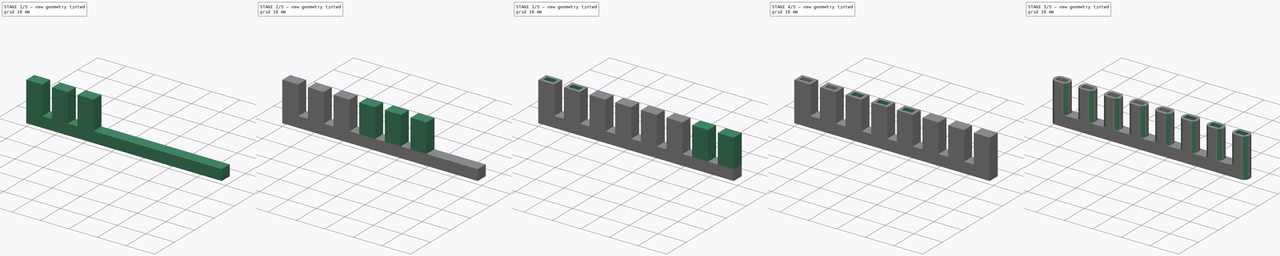
[diagram: build sequence overview — one tinted view per stage of 5, left to right]
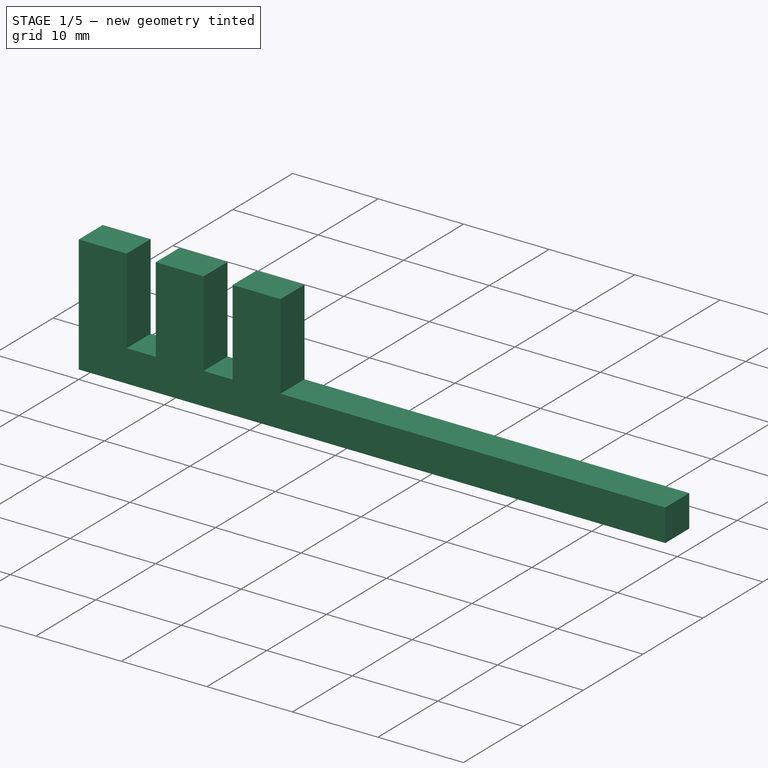
[diagram: stage 1 of 5 — iso view after this stage's code; geometry added in this stage tinted green]
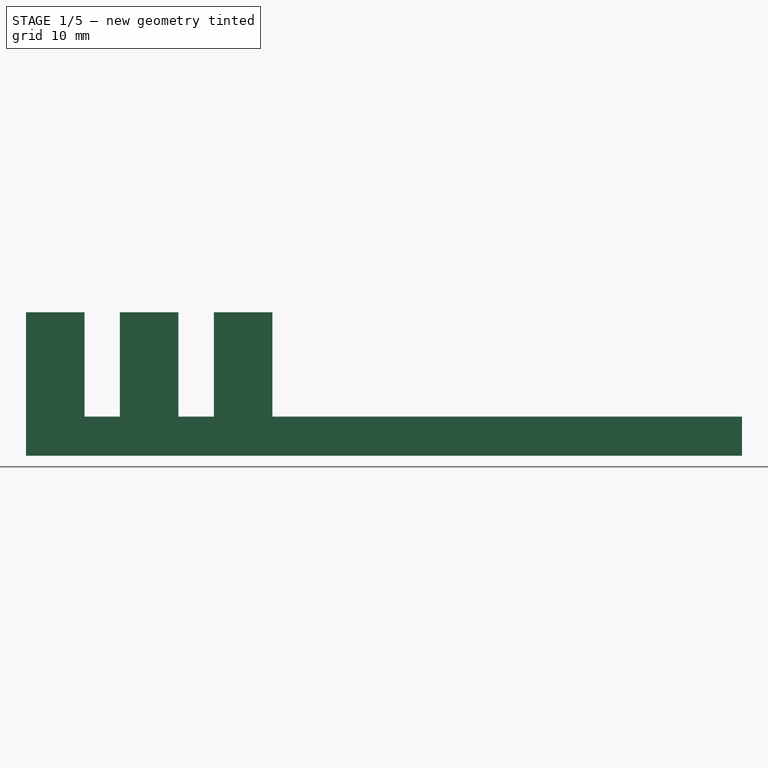
[diagram: stage 1 of 5 — front view after this stage's code; geometry added in this stage tinted green]
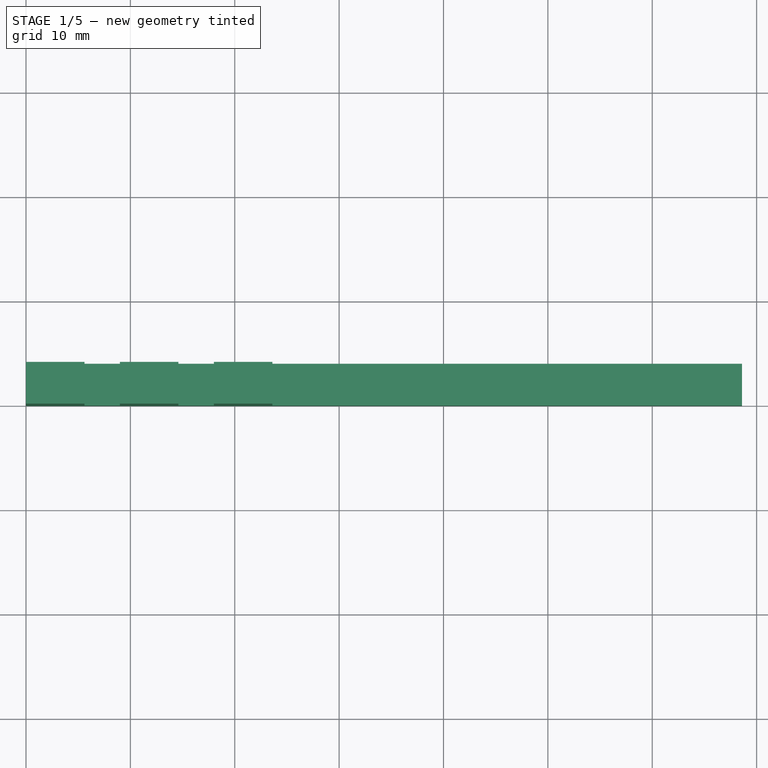
[diagram: stage 1 of 5 — top view after this stage's code; geometry added in this stage tinted green]
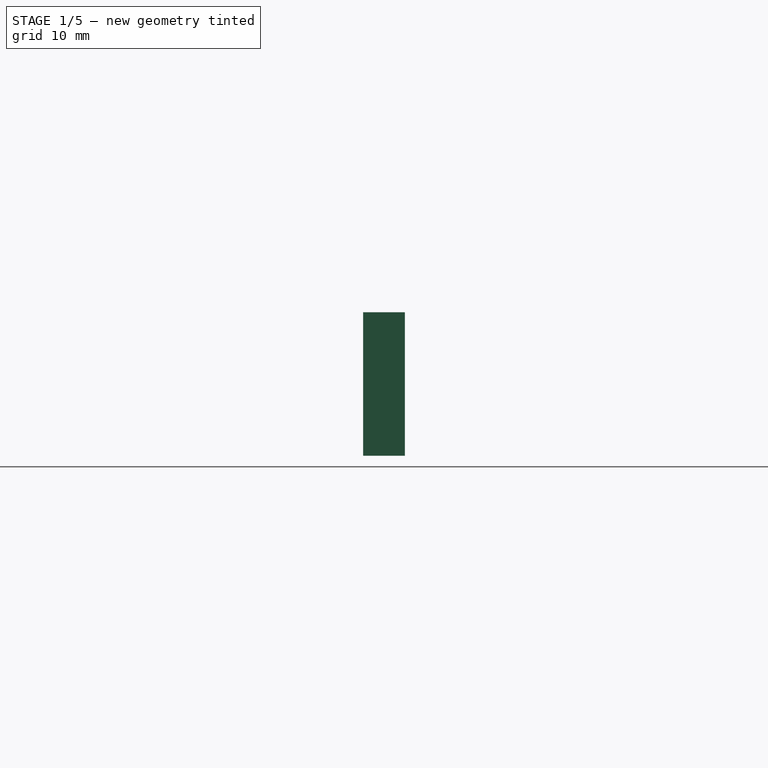
[diagram: stage 1 of 5 — right view after this stage's code; geometry added in this stage tinted green]
FCSTD DOCUMENT  (FreeCAD 0.19R14555 (Git shallow))
Label: ops.dicer_rect.lg_pocket_fillet
License: All rights reserved
LicenseURL: http://en.wikipedia.org/wiki/All_rights_reserved
objects: Sketcher::SketchObject×17, PartDesign::Pad×9, PartDesign::Pocket×8, PartDesign::Fillet×1, PartDesign::Body×1
note: 54 computed .brp shape members not serialized (recipe doc carries the construction recipe); baked Part::Feature solids carry a one-line shape summary decoded from their .brp

FEATURE [Sketcher::SketchObject] Sketch
  FullyConstrained = true
  MapMode = 5
  Support = -> [XY_Plane]
  sketch-geometry (4):
    g0: LineSegment StartX=0 StartY=0 StartZ=0 EndX=5.6 EndY=0 EndZ=0
    g1: LineSegment StartX=5.6 StartY=0 StartZ=0 EndX=5.6 EndY=4 EndZ=0
    g2: LineSegment StartX=5.6 StartY=4 StartZ=0 EndX=0 EndY=4 EndZ=0
    g3: LineSegment StartX=0 StartY=4 StartZ=0 EndX=0 EndY=0 EndZ=0
  constraints (11):
    c: Coincident(g0,g1)
    c: Coincident(g1,g2)
    c: Coincident(g2,g3)
    c: Coincident(g3,g0)
    c: Horizontal(g0)
    c: Horizontal(g2)
    c: Vertical(g1)
    c: Vertical(g3)
    c: Coincident(g0,g-1)
    c: DistanceY(g0,g2) = 4
    c: DistanceX(g2,g1) = 5.6
FEATURE [Sketcher::SketchObject] Sketch001
  FullyConstrained = true
  MapMode = 5
  Support = -> [XY_Plane]
  sketch-geometry (4):
    g0: LineSegment StartX=9 StartY=0 StartZ=0 EndX=14.6 EndY=0 EndZ=0
    g1: LineSegment StartX=14.6 StartY=0 StartZ=0 EndX=14.6 EndY=4 EndZ=0
    g2: LineSegment StartX=14.6 StartY=4 StartZ=0 EndX=9 EndY=4 EndZ=0
    g3: LineSegment StartX=9 StartY=4 StartZ=0 EndX=9 EndY=0 EndZ=0
  constraints (12):
    c: Coincident(g0,g1)
    c: Coincident(g1,g2)
    c: Coincident(g2,g3)
    c: Coincident(g3,g0)
    c: Horizontal(g0)
    c: Horizontal(g2)
    c: Vertical(g1)
    c: Vertical(g3)
    c: PointOnObject(g0,g-1)
    c: DistanceX(g-1,g0) = 9
    c: DistanceX(g0,g0) = 5.6
    c: DistanceY(g0,g2) = 4
FEATURE [Sketcher::SketchObject] Sketch002
  FullyConstrained = true
  MapMode = 5
  Support = -> [XY_Plane]
  sketch-geometry (4):
    g0: LineSegment StartX=18 StartY=0 StartZ=0 EndX=23.6 EndY=0 EndZ=0
    g1: LineSegment StartX=23.6 StartY=0 StartZ=0 EndX=23.6 EndY=4 EndZ=0
    g2: LineSegment StartX=23.6 StartY=4 StartZ=0 EndX=18 EndY=4 EndZ=0
    g3: LineSegment StartX=18 StartY=4 StartZ=0 EndX=18 EndY=0 EndZ=0
  constraints (12):
    c: Coincident(g0,g1)
    c: Coincident(g1,g2)
    c: Coincident(g2,g3)
    c: Coincident(g3,g0)
    c: Horizontal(g0)
    c: Horizontal(g2)
    c: Vertical(g1)
    c: Vertical(g3)
    c: PointOnObject(g0,g-1)
    c: DistanceX(g-1,g0) = 18
    c: DistanceX(g0,g0) = 5.6
    c: DistanceY(g0,g2) = 4
FEATURE [Sketcher::SketchObject] Sketch003
  FullyConstrained = true
  MapMode = 5
  Support = -> [XY_Plane]
  sketch-geometry (4):
    g0: LineSegment StartX=27 StartY=0 StartZ=0 EndX=32.6 EndY=0 EndZ=0
    g1: LineSegment StartX=32.6 StartY=0 StartZ=0 EndX=32.6 EndY=4 EndZ=0
    g2: LineSegment StartX=32.6 StartY=4 StartZ=0 EndX=27 EndY=4 EndZ=0
    g3: LineSegment StartX=27 StartY=4 StartZ=0 EndX=27 EndY=0 EndZ=0
  constraints (12):
    c: Coincident(g0,g1)
    c: Coincident(g1,g2)
    c: Coincident(g2,g3)
    c: Coincident(g3,g0)
    c: Horizontal(g0)
    c: Horizontal(g2)
    c: Vertical(g1)
    c: Vertical(g3)
    c: PointOnObject(g0,g-1)
    c: DistanceX(g-1,g0) = 27
    c: DistanceX(g0,g0) = 5.6
    c: DistanceY(g0,g2) = 4
FEATURE [Sketcher::SketchObject] Sketch004
  FullyConstrained = true
  MapMode = 5
  Support = -> [XY_Plane]
  sketch-geometry (4):
    g0: LineSegment StartX=36 StartY=0 StartZ=0 EndX=41.6 EndY=0 EndZ=0
    g1: LineSegment StartX=41.6 StartY=0 StartZ=0 EndX=41.6 EndY=4 EndZ=0
    g2: LineSegment StartX=41.6 StartY=4 StartZ=0 EndX=36 EndY=4 EndZ=0
    g3: LineSegment StartX=36 StartY=4 StartZ=0 EndX=36 EndY=0 EndZ=0
  constraints (12):
    c: Coincident(g0,g1)
    c: Coincident(g1,g2)
    c: Coincident(g2,g3)
    c: Coincident(g3,g0)
    c: Horizontal(g0)
    c: Horizontal(g2)
    c: Vertical(g1)
    c: Vertical(g3)
    c: PointOnObject(g0,g-1)
    c: DistanceX(g-1,g0) = 36
    c: DistanceX(g0,g0) = 5.6
    c: DistanceY(g0,g1) = 4
FEATURE [Sketcher::SketchObject] Sketch005
  FullyConstrained = true
  MapMode = 5
  Support = -> [XY_Plane]
  sketch-geometry (4):
    g0: LineSegment StartX=45 StartY=0 StartZ=0 EndX=50.6 EndY=0 EndZ=0
    g1: LineSegment StartX=50.6 StartY=0 StartZ=0 EndX=50.6 EndY=4 EndZ=0
    g2: LineSegment StartX=50.6 StartY=4 StartZ=0 EndX=45 EndY=4 EndZ=0
    g3: LineSegment StartX=45 StartY=4 StartZ=0 EndX=45 EndY=0 EndZ=0
  constraints (12):
    c: Coincident(g0,g1)
    c: Coincident(g1,g2)
    c: Coincident(g2,g3)
    c: Coincident(g3,g0)
    c: Horizontal(g0)
    c: Horizontal(g2)
    c: Vertical(g1)
    c: Vertical(g3)
    c: PointOnObject(g0,g-1)
    c: DistanceX(g-1,g0) = 45
    c: DistanceX(g0,g0) = 5.6
    c: DistanceY(g0,g2) = 4
FEATURE [Sketcher::SketchObject] Sketch006
  FullyConstrained = true
  MapMode = 5
  Support = -> [XY_Plane]
  sketch-geometry (4):
    g0: LineSegment StartX=54 StartY=4 StartZ=0 EndX=59.6 EndY=4 EndZ=0
    g1: LineSegment StartX=59.6 StartY=4 StartZ=0 EndX=59.6 EndY=0 EndZ=0
    g2: LineSegment StartX=59.6 StartY=0 StartZ=0 EndX=54 EndY=0 EndZ=0
    g3: LineSegment StartX=54 StartY=0 StartZ=0 EndX=54 EndY=4 EndZ=0
  constraints (12):
    c: Coincident(g0,g1)
    c: Coincident(g1,g2)
    c: Coincident(g2,g3)
    c: Coincident(g3,g0)
    c: Horizontal(g0)
    c: Horizontal(g2)
    c: Vertical(g1)
    c: Vertical(g3)
    c: PointOnObject(g1,g-1)
    c: DistanceX(g-1,g2) = 54
    c: DistanceX(g2,g1) = 5.6
    c: DistanceY(g2,g0) = 4
FEATURE [Sketcher::SketchObject] Sketch007
  FullyConstrained = true
  MapMode = 5
  Support = -> [XY_Plane]
  sketch-geometry (4):
    g0: LineSegment StartX=63 StartY=0 StartZ=0 EndX=68.6 EndY=0 EndZ=0
    g1: LineSegment StartX=68.6 StartY=0 StartZ=0 EndX=68.6 EndY=4 EndZ=0
    g2: LineSegment StartX=68.6 StartY=4 StartZ=0 EndX=63 EndY=4 EndZ=0
    g3: LineSegment StartX=63 StartY=4 StartZ=0 EndX=63 EndY=0 EndZ=0
  constraints (12):
    c: Coincident(g0,g1)
    c: Coincident(g1,g2)
    c: Coincident(g2,g3)
    c: Coincident(g3,g0)
    c: Horizontal(g0)
    c: Horizontal(g2)
    c: Vertical(g1)
    c: Vertical(g3)
    c: PointOnObject(g0,g-1)
    c: DistanceX(g-1,g0) = 63
    c: DistanceY(g0,g2) = 4
    c: DistanceX(g0,g0) = 5.6
FEATURE [Sketcher::SketchObject] Sketch008
  FullyConstrained = true
  MapMode = 5
  Support = -> [XY_Plane]
  sketch-geometry (4):
    g0: LineSegment StartX=0 StartY=0 StartZ=0 EndX=68.6 EndY=0 EndZ=0
    g1: LineSegment StartX=68.6 StartY=0 StartZ=0 EndX=68.6 EndY=4 EndZ=0
    g2: LineSegment StartX=68.6 StartY=4 StartZ=0 EndX=0 EndY=4 EndZ=0
    g3: LineSegment StartX=0 StartY=4 StartZ=0 EndX=0 EndY=0 EndZ=0
  constraints (11):
    c: Coincident(g0,g1)
    c: Coincident(g1,g2)
    c: Coincident(g2,g3)
    c: Coincident(g3,g0)
    c: Horizontal(g0)
    c: Horizontal(g2)
    c: Vertical(g1)
    c: Vertical(g3)
    c: Coincident(g0,g-1)
    c: DistanceY(g0,g2) = 4
    c: DistanceX(g0,g0) = 68.6
FEATURE [PartDesign::Pad] Pad
  Direction = (1,1,1)
  Length = 3.75
  Length2 = 100
  Profile = -> Sketch008
  Reversed = true
  Type = 0
FEATURE [PartDesign::Pad] Pad001
  BaseFeature = -> Pad
  Direction = (1,1,1)
  Length = 10
  Length2 = 100
  Profile = -> Sketch
  Type = 0
FEATURE [PartDesign::Pad] Pad002
  BaseFeature = -> Pad001
  Direction = (1,1,1)
  Length = 10
  Length2 = 100
  Profile = -> Sketch001
  Type = 0
FEATURE [PartDesign::Pad] Pad003
  BaseFeature = -> Pad002
  Direction = (1,1,1)
  Length = 10
  Length2 = 100
  Profile = -> Sketch002
  Type = 0
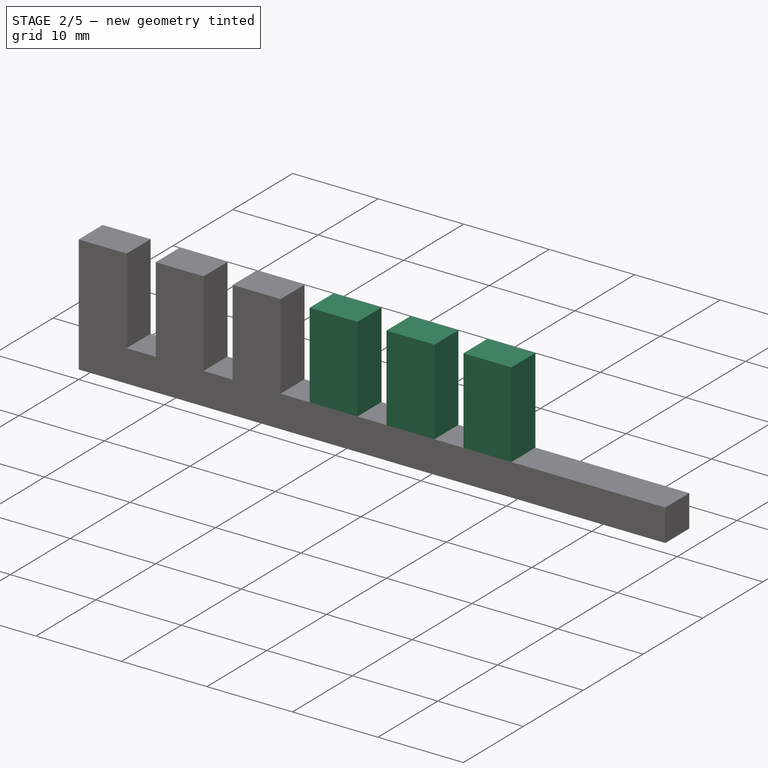
[diagram: stage 2 of 5 — iso view after this stage's code; geometry added in this stage tinted green]
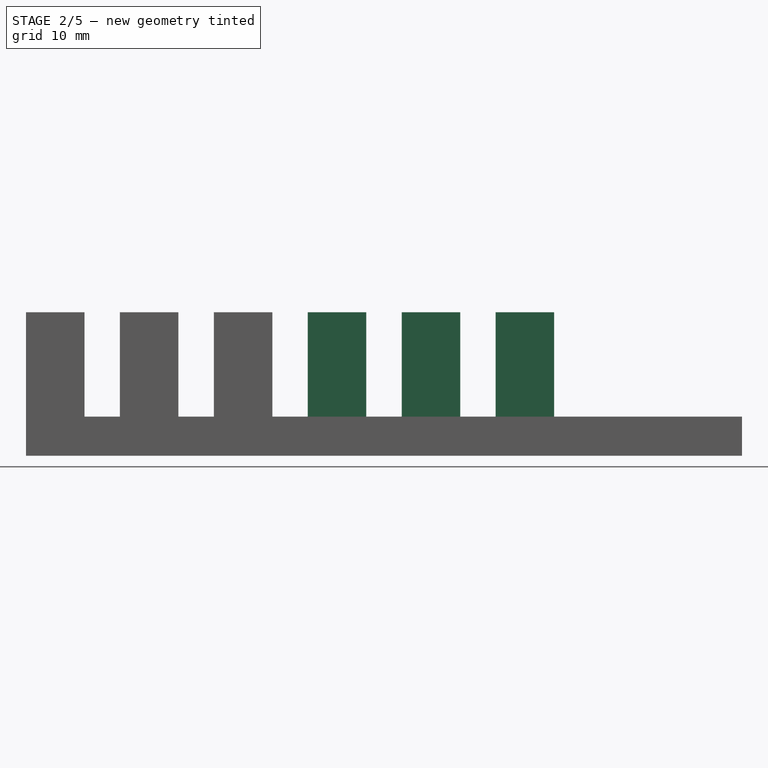
[diagram: stage 2 of 5 — front view after this stage's code; geometry added in this stage tinted green]
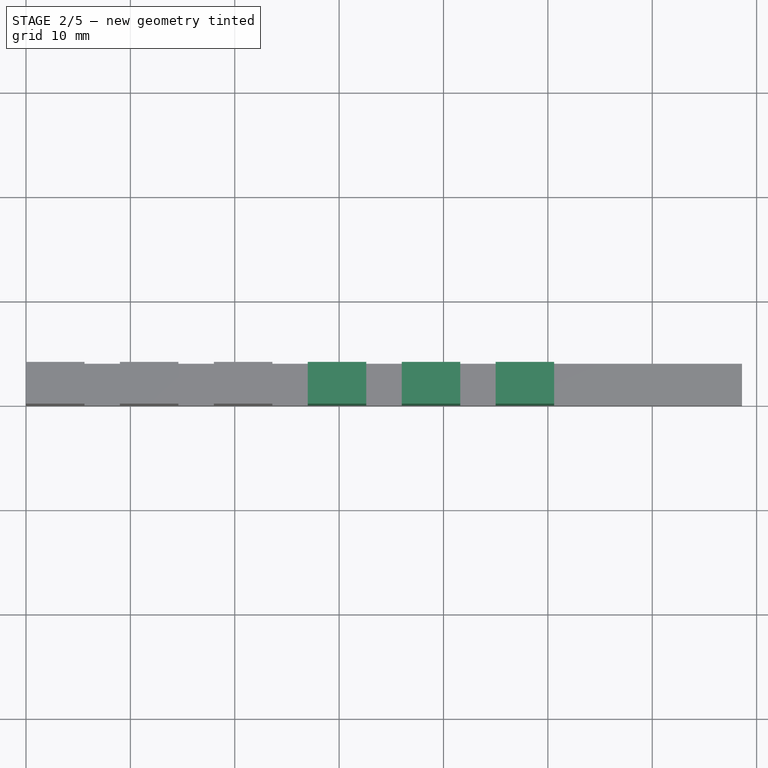
[diagram: stage 2 of 5 — top view after this stage's code; geometry added in this stage tinted green]
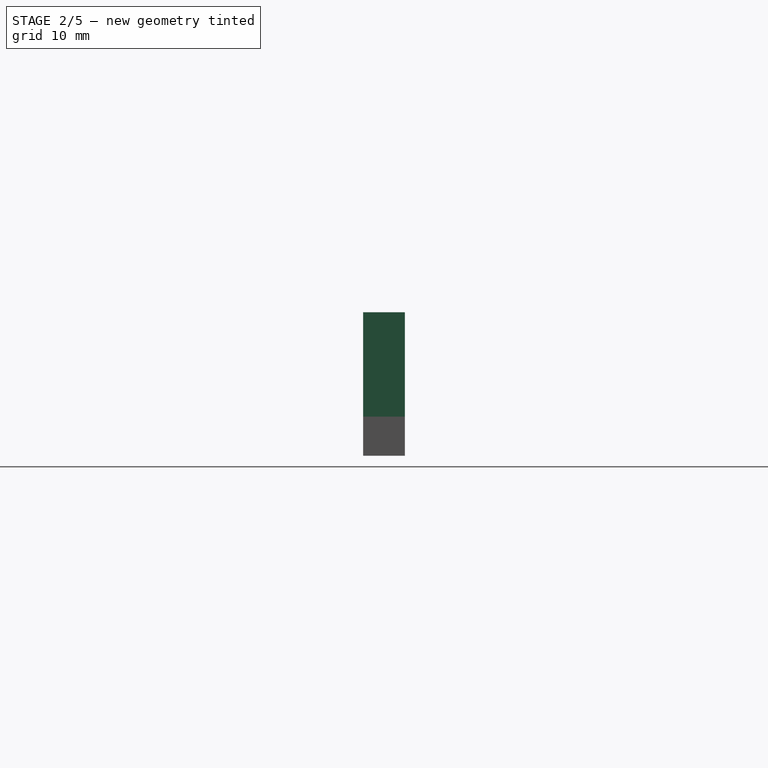
[diagram: stage 2 of 5 — right view after this stage's code; geometry added in this stage tinted green]
FEATURE [PartDesign::Pad] Pad004
  BaseFeature = -> Pad003
  Direction = (1,1,1)
  Length = 10
  Length2 = 100
  Profile = -> Sketch003
  Type = 0
FEATURE [PartDesign::Pad] Pad005
  BaseFeature = -> Pad004
  Direction = (1,1,1)
  Length = 10
  Length2 = 100
  Profile = -> Sketch004
  Type = 0
FEATURE [PartDesign::Pad] Pad006
  BaseFeature = -> Pad005
  Direction = (1,1,1)
  Length = 10
  Length2 = 100
  Profile = -> Sketch005
  Type = 0
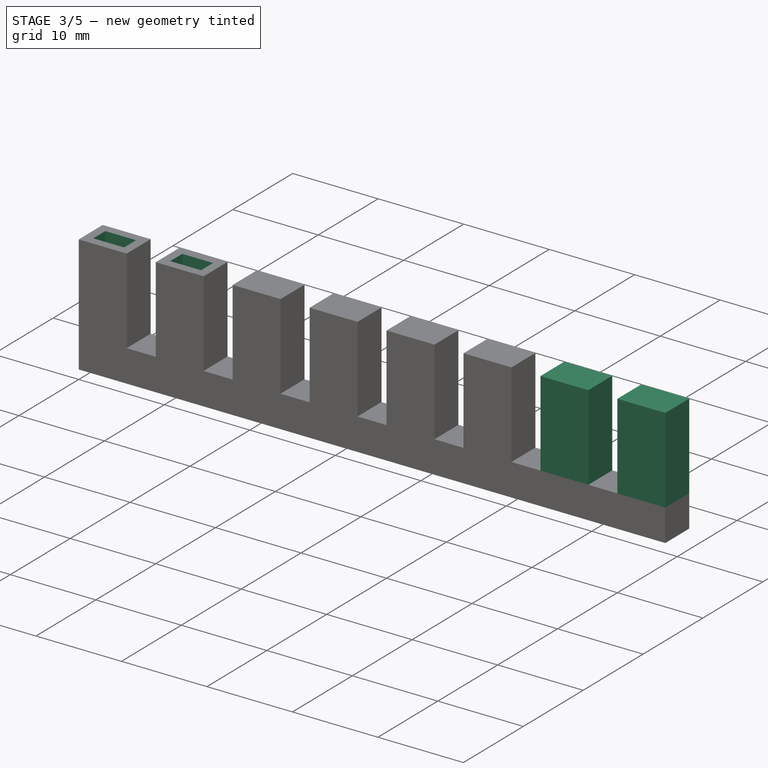
[diagram: stage 3 of 5 — iso view after this stage's code; geometry added in this stage tinted green]
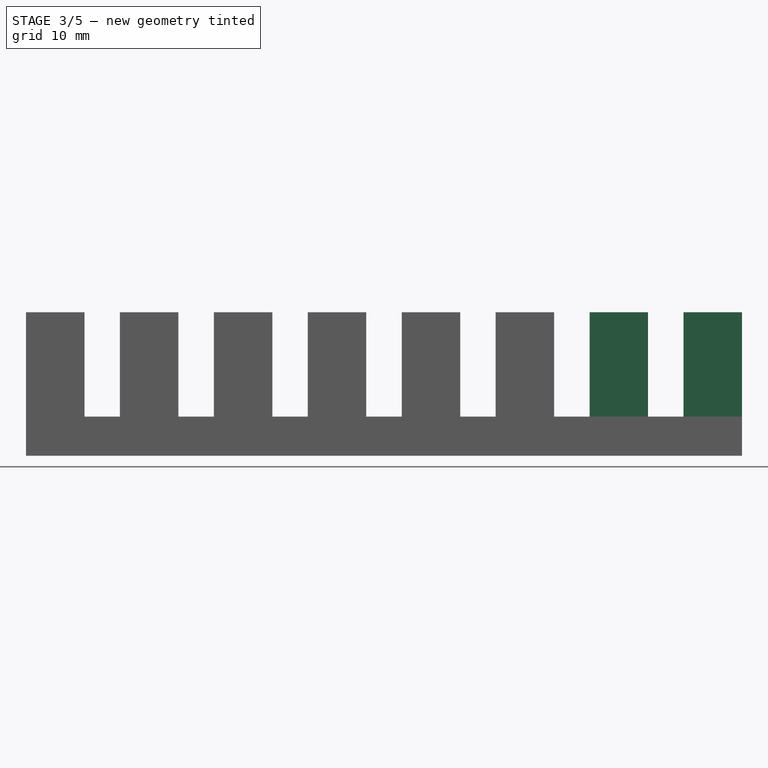
[diagram: stage 3 of 5 — front view after this stage's code; geometry added in this stage tinted green]
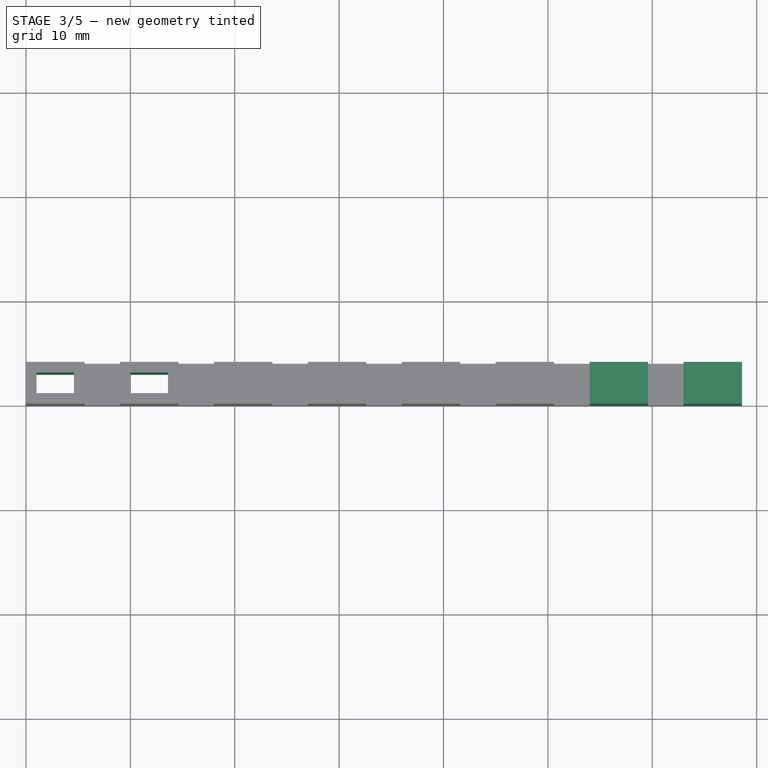
[diagram: stage 3 of 5 — top view after this stage's code; geometry added in this stage tinted green]
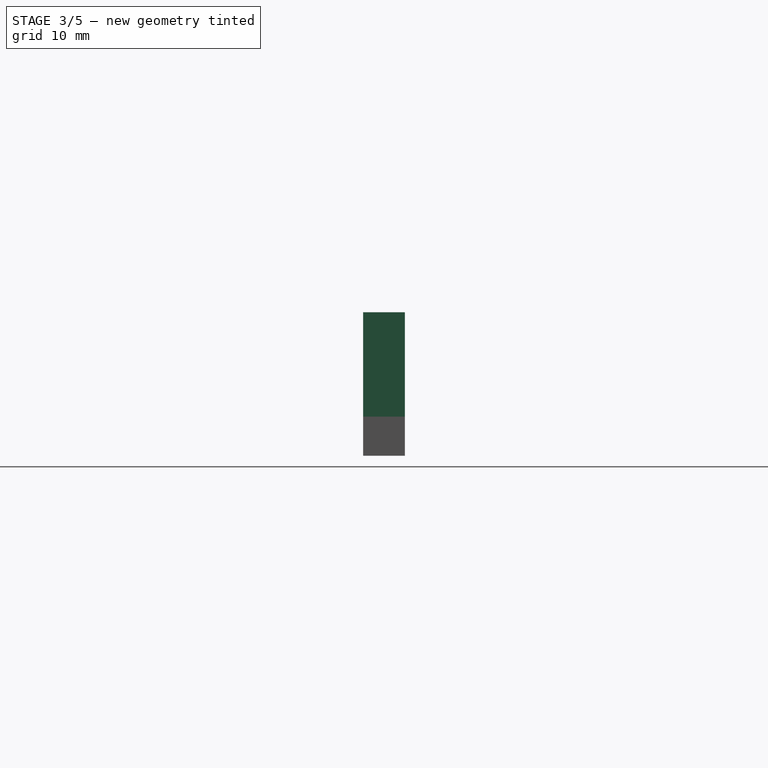
[diagram: stage 3 of 5 — right view after this stage's code; geometry added in this stage tinted green]
FEATURE [PartDesign::Pad] Pad007
  BaseFeature = -> Pad006
  Direction = (1,1,1)
  Length = 10
  Length2 = 100
  Profile = -> Sketch006
  Type = 0
FEATURE [PartDesign::Pad] Pad008
  BaseFeature = -> Pad007
  Direction = (1,1,1)
  Length = 10
  Length2 = 100
  Profile = -> Sketch007
  Type = 0
FEATURE [Sketcher::SketchObject] Sketch009
  FullyConstrained = true
  MapMode = 5
  Placement = pos=(0,0,10) rot=(0,0,1;0rad)
  Support = -> [Pad008]
  sketch-geometry (4):
    g0: LineSegment StartX=1 StartY=3 StartZ=0 EndX=4.6 EndY=3 EndZ=0
    g1: LineSegment StartX=4.6 StartY=3 StartZ=0 EndX=4.6 EndY=1 EndZ=0
    g2: LineSegment StartX=4.6 StartY=1 StartZ=0 EndX=1 EndY=1 EndZ=0
    g3: LineSegment StartX=1 StartY=1 StartZ=0 EndX=1 EndY=3 EndZ=0
  constraints (12):
    c: Coincident(g0,g1)
    c: Coincident(g1,g2)
    c: Coincident(g2,g3)
    c: Coincident(g3,g0)
    c: Horizontal(g0)
    c: Horizontal(g2)
    c: Vertical(g1)
    c: Vertical(g3)
    c: DistanceX(g-1,g2) = 1
    c: DistanceY(g-1,g2) = 1
    c: DistanceY(g2,g0) = 2
    c: DistanceX(g0,g0) = 3.6
FEATURE [Sketcher::SketchObject] Sketch010
  FullyConstrained = true
  MapMode = 5
  Placement = pos=(0,0,10) rot=(0,0,1;0rad)
  Support = -> [Pad008]
  sketch-geometry (4):
    g0: LineSegment StartX=10 StartY=3 StartZ=0 EndX=13.6 EndY=3 EndZ=0
    g1: LineSegment StartX=13.6 StartY=3 StartZ=0 EndX=13.6 EndY=1 EndZ=0
    g2: LineSegment StartX=13.6 StartY=1 StartZ=0 EndX=10 EndY=1 EndZ=0
    g3: LineSegment StartX=10 StartY=1 StartZ=0 EndX=10 EndY=3 EndZ=0
  constraints (12):
    c: Coincident(g0,g1)
    c: Coincident(g1,g2)
    c: Coincident(g2,g3)
    c: Coincident(g3,g0)
    c: Horizontal(g0)
    c: Horizontal(g2)
    c: Vertical(g1)
    c: Vertical(g3)
    c: DistanceX(g-1,g2) = 10
    c: DistanceY(g-1,g2) = 1
    c: DistanceX(g0,g0) = 3.6
    c: DistanceY(g1,g0) = 2
FEATURE [Sketcher::SketchObject] Sketch011
  FullyConstrained = true
  MapMode = 5
  Placement = pos=(0,0,10) rot=(0,0,1;0rad)
  Support = -> [Pad008]
  sketch-geometry (4):
    g0: LineSegment StartX=19 StartY=3 StartZ=0 EndX=22.6 EndY=3 EndZ=0
    g1: LineSegment StartX=22.6 StartY=3 StartZ=0 EndX=22.6 EndY=1 EndZ=0
    g2: LineSegment StartX=22.6 StartY=1 StartZ=0 EndX=19 EndY=1 EndZ=0
    g3: LineSegment StartX=19 StartY=1 StartZ=0 EndX=19 EndY=3 EndZ=0
  constraints (12):
    c: Coincident(g0,g1)
    c: Coincident(g1,g2)
    c: Coincident(g2,g3)
    c: Coincident(g3,g0)
    c: Horizontal(g0)
    c: Horizontal(g2)
    c: Vertical(g1)
    c: Vertical(g3)
    c: DistanceX(g-1,g2) = 19
    c: DistanceY(g-1,g2) = 1
    c: DistanceX(g0,g0) = 3.6
    c: DistanceY(g1,g0) = 2
FEATURE [Sketcher::SketchObject] Sketch012
  FullyConstrained = true
  MapMode = 5
  Placement = pos=(0,0,10) rot=(0,0,1;0rad)
  Support = -> [Pad008]
  sketch-geometry (4):
    g0: LineSegment StartX=28 StartY=1 StartZ=0 EndX=31.6 EndY=1 EndZ=0
    g1: LineSegment StartX=31.6 StartY=1 StartZ=0 EndX=31.6 EndY=3 EndZ=0
    g2: LineSegment StartX=31.6 StartY=3 StartZ=0 EndX=28 EndY=3 EndZ=0
    g3: LineSegment StartX=28 StartY=3 StartZ=0 EndX=28 EndY=1 EndZ=0
  constraints (12):
    c: Coincident(g0,g1)
    c: Coincident(g1,g2)
    c: Coincident(g2,g3)
    c: Coincident(g3,g0)
    c: Horizontal(g0)
    c: Horizontal(g2)
    c: Vertical(g1)
    c: Vertical(g3)
    c: DistanceX(g-1,g0) = 28
    c: DistanceY(g-1,g0) = 1
    c: DistanceX(g2,g1) = 3.6
    c: DistanceY(g0,g1) = 2
FEATURE [Sketcher::SketchObject] Sketch013
  FullyConstrained = true
  MapMode = 5
  Placement = pos=(0,0,10) rot=(0,0,1;0rad)
  Support = -> [Pad008]
  sketch-geometry (4):
    g0: LineSegment StartX=37 StartY=3 StartZ=0 EndX=40.6 EndY=3 EndZ=0
    g1: LineSegment StartX=40.6 StartY=3 StartZ=0 EndX=40.6 EndY=1 EndZ=0
    g2: LineSegment StartX=40.6 StartY=1 StartZ=0 EndX=37 EndY=1 EndZ=0
    g3: LineSegment StartX=37 StartY=1 StartZ=0 EndX=37 EndY=3 EndZ=0
  constraints (12):
    c: Coincident(g0,g1)
    c: Coincident(g1,g2)
    c: Coincident(g2,g3)
    c: Coincident(g3,g0)
    c: Horizontal(g0)
    c: Horizontal(g2)
    c: Vertical(g1)
    c: Vertical(g3)
    c: DistanceX(g-1,g2) = 37
    c: DistanceY(g-1,g2) = 1
    c: DistanceX(g0,g0) = 3.6
    c: DistanceY(g1,g0) = 2
FEATURE [Sketcher::SketchObject] Sketch014
  FullyConstrained = true
  MapMode = 5
  Placement = pos=(0,0,10) rot=(0,0,1;0rad)
  Support = -> [Pad008]
  sketch-geometry (4):
    g0: LineSegment StartX=46 StartY=3 StartZ=0 EndX=49.6 EndY=3 EndZ=0
    g1: LineSegment StartX=49.6 StartY=3 StartZ=0 EndX=49.6 EndY=1 EndZ=0
    g2: LineSegment StartX=49.6 StartY=1 StartZ=0 EndX=46 EndY=1 EndZ=0
    g3: LineSegment StartX=46 StartY=1 StartZ=0 EndX=46 EndY=3 EndZ=0
  constraints (12):
    c: Coincident(g0,g1)
    c: Coincident(g1,g2)
    c: Coincident(g2,g3)
    c: Coincident(g3,g0)
    c: Horizontal(g0)
    c: Horizontal(g2)
    c: Vertical(g1)
    c: Vertical(g3)
    c: DistanceX(g-1,g2) = 46
    c: DistanceY(g-1,g2) = 1
    c: DistanceX(g0,g0) = 3.6
    c: DistanceY(g1,g0) = 2
FEATURE [Sketcher::SketchObject] Sketch015
  FullyConstrained = true
  MapMode = 5
  Placement = pos=(0,0,10) rot=(0,0,1;0rad)
  Support = -> [Pad008]
  sketch-geometry (4):
    g0: LineSegment StartX=55 StartY=3 StartZ=0 EndX=58.6 EndY=3 EndZ=0
    g1: LineSegment StartX=58.6 StartY=3 StartZ=0 EndX=58.6 EndY=1 EndZ=0
    g2: LineSegment StartX=58.6 StartY=1 StartZ=0 EndX=55 EndY=1 EndZ=0
    g3: LineSegment StartX=55 StartY=1 StartZ=0 EndX=55 EndY=3 EndZ=0
  constraints (12):
    c: Coincident(g0,g1)
    c: Coincident(g1,g2)
    c: Coincident(g2,g3)
    c: Coincident(g3,g0)
    c: Horizontal(g0)
    c: Horizontal(g2)
    c: Vertical(g1)
    c: Vertical(g3)
    c: DistanceX(g-1,g2) = 55
    c: DistanceY(g-1,g2) = 1
    c: DistanceX(g0,g0) = 3.6
    c: DistanceY(g1,g0) = 2
FEATURE [Sketcher::SketchObject] Sketch016
  FullyConstrained = true
  MapMode = 5
  Placement = pos=(0,0,10) rot=(0,0,1;0rad)
  Support = -> [Pad008]
  sketch-geometry (4):
    g0: LineSegment StartX=64 StartY=3 StartZ=0 EndX=67.6 EndY=3 EndZ=0
    g1: LineSegment StartX=67.6 StartY=3 StartZ=0 EndX=67.6 EndY=1 EndZ=0
    g2: LineSegment StartX=67.6 StartY=1 StartZ=0 EndX=64 EndY=1 EndZ=0
    g3: LineSegment StartX=64 StartY=1 StartZ=0 EndX=64 EndY=3 EndZ=0
  constraints (12):
    c: Coincident(g0,g1)
    c: Coincident(g1,g2)
    c: Coincident(g2,g3)
    c: Coincident(g3,g0)
    c: Horizontal(g0)
    c: Horizontal(g2)
    c: Vertical(g1)
    c: Vertical(g3)
    c: DistanceX(g-1,g2) = 64
    c: DistanceY(g-1,g2) = 1
    c: DistanceX(g0,g0) = 3.6
    c: DistanceY(g1,g0) = 2
FEATURE [PartDesign::Pocket] Pocket
  BaseFeature = -> Pad008
  Length = 13.75
  Length2 = 100
  Profile = -> Sketch009
  Type = 0
FEATURE [PartDesign::Pocket] Pocket001
  BaseFeature = -> Pocket
  Length = 13.75
  Length2 = 100
  Profile = -> Sketch010
  Type = 0
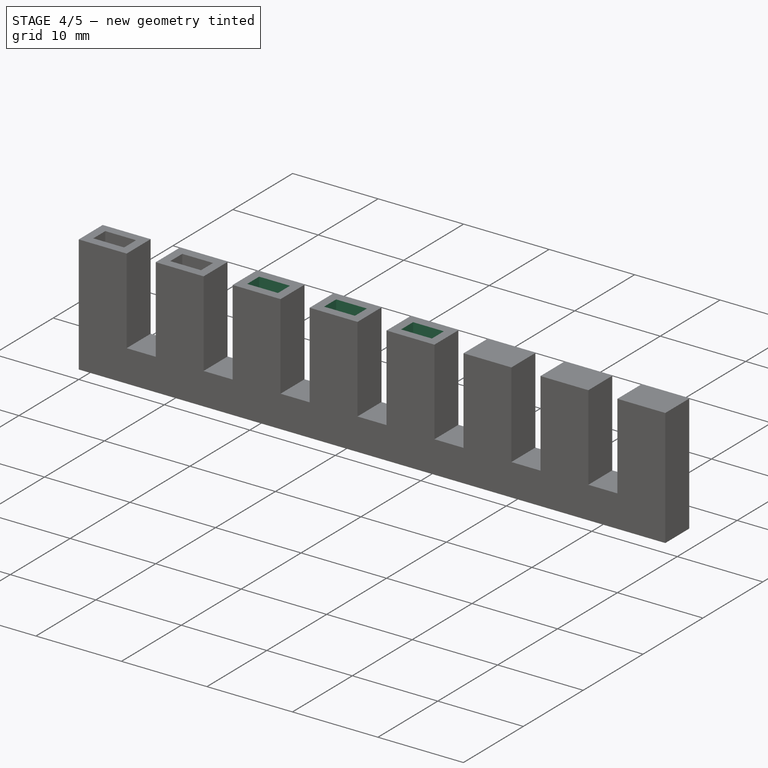
[diagram: stage 4 of 5 — iso view after this stage's code; geometry added in this stage tinted green]
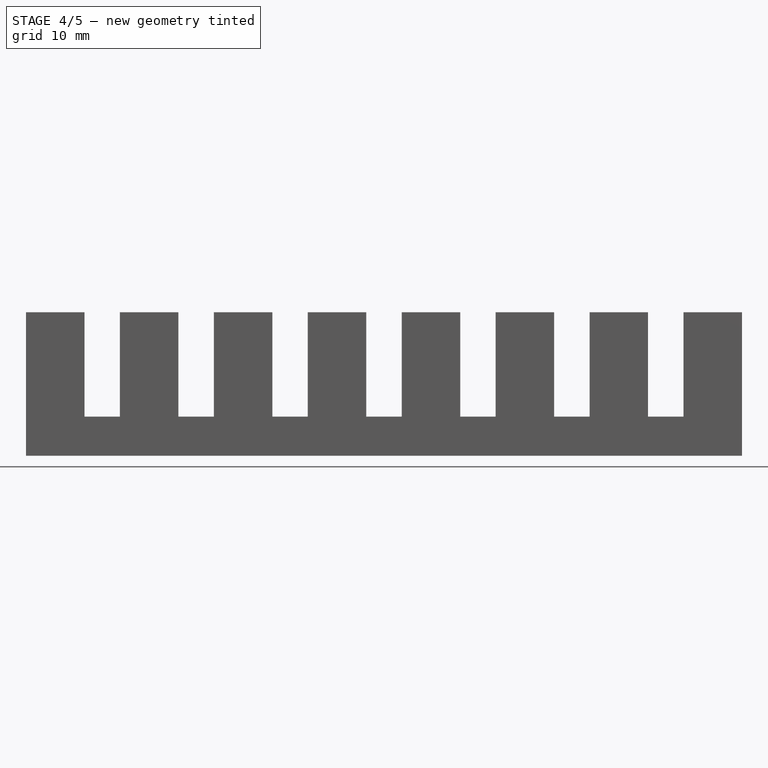
[diagram: stage 4 of 5 — front view after this stage's code; geometry added in this stage tinted green]
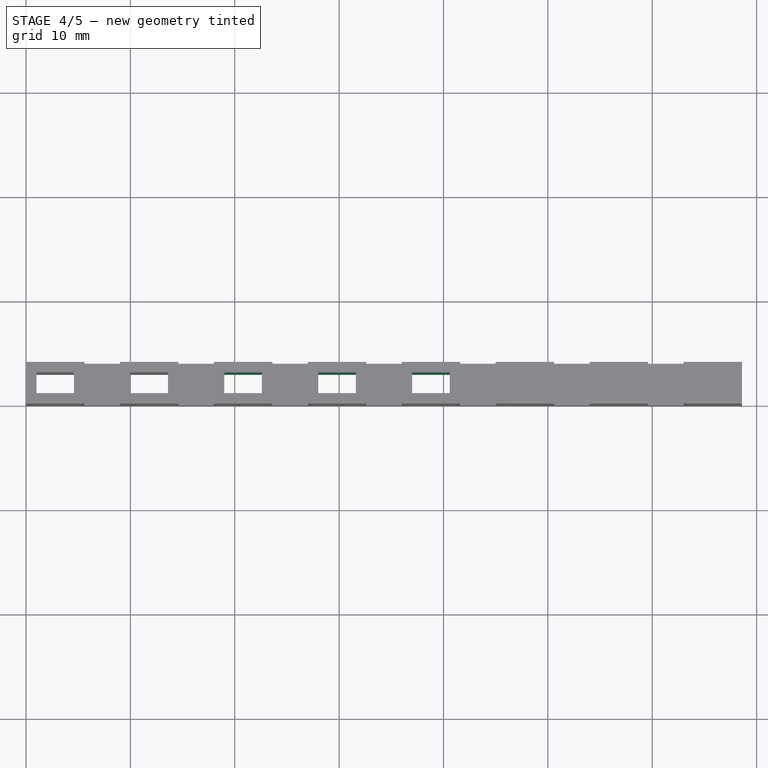
[diagram: stage 4 of 5 — top view after this stage's code; geometry added in this stage tinted green]
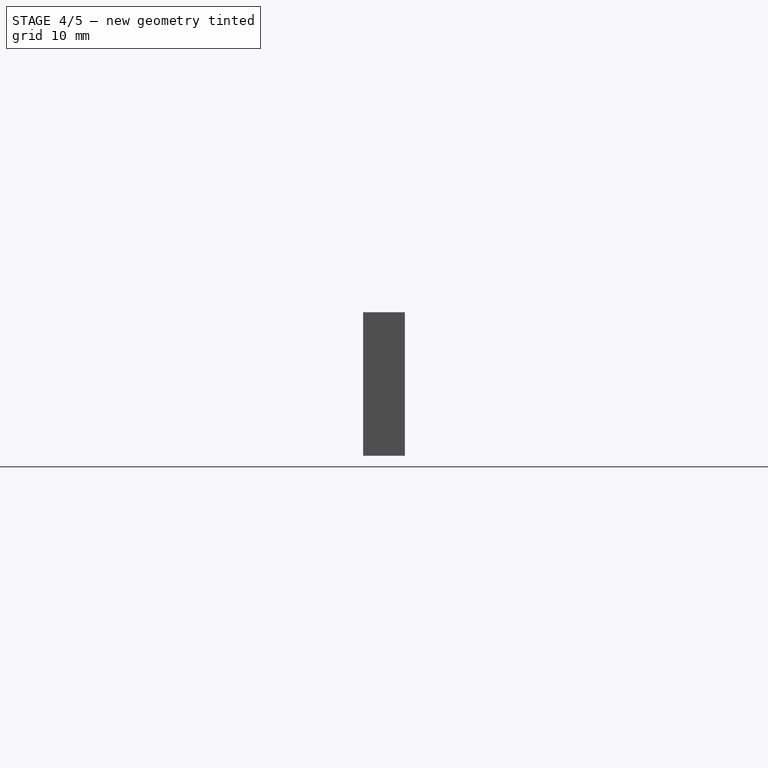
[diagram: stage 4 of 5 — right view after this stage's code; geometry added in this stage tinted green]
FEATURE [PartDesign::Pocket] Pocket002
  BaseFeature = -> Pocket001
  Length = 13.75
  Length2 = 100
  Profile = -> Sketch011
  Type = 0
FEATURE [PartDesign::Pocket] Pocket003
  BaseFeature = -> Pocket002
  Length = 13.75
  Length2 = 100
  Profile = -> Sketch012
  Type = 0
FEATURE [PartDesign::Pocket] Pocket004
  BaseFeature = -> Pocket003
  Length = 13.75
  Length2 = 100
  Profile = -> Sketch013
  Type = 0
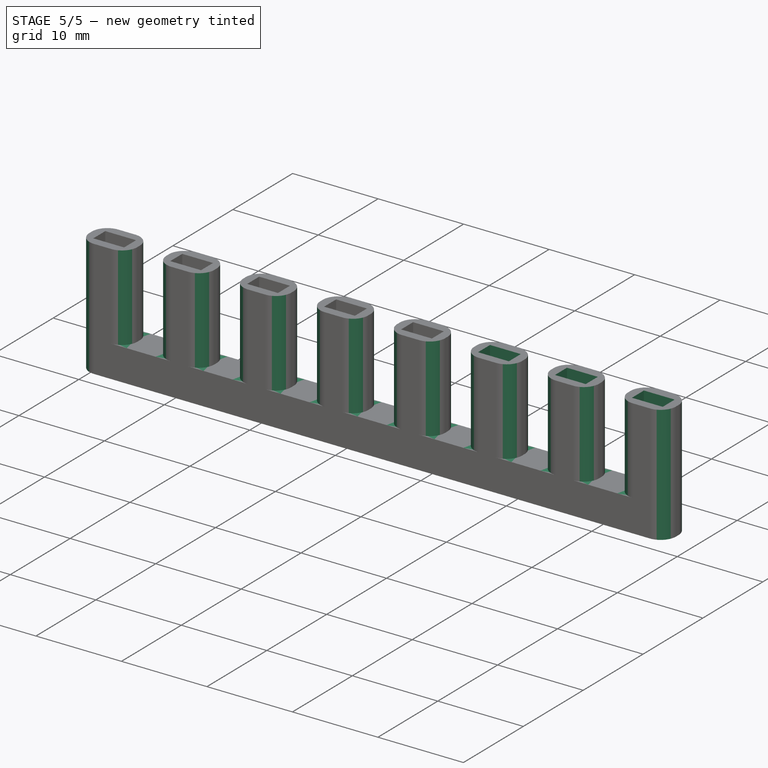
[diagram: stage 5 of 5 — iso view after this stage's code; geometry added in this stage tinted green]
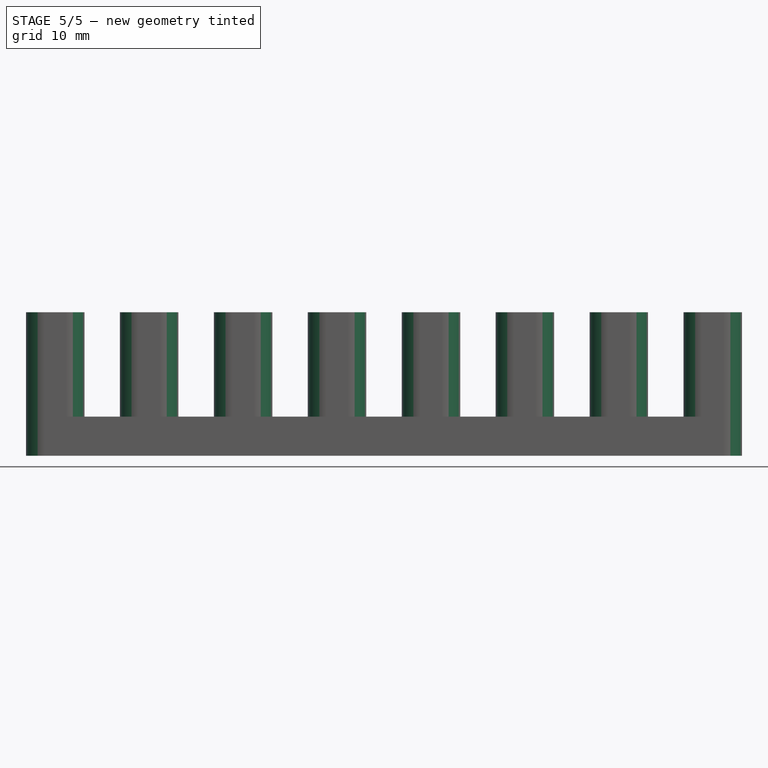
[diagram: stage 5 of 5 — front view after this stage's code; geometry added in this stage tinted green]
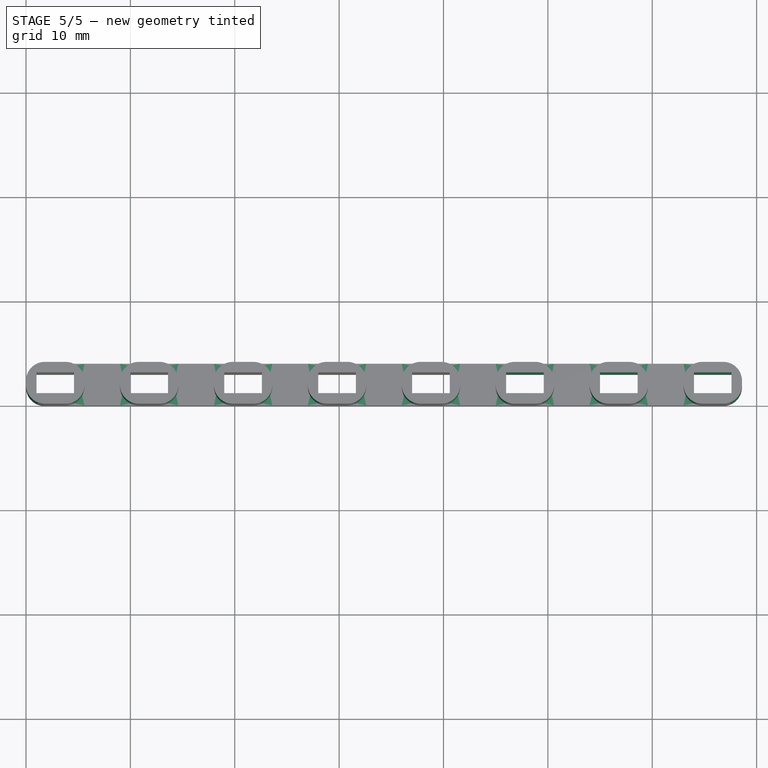
[diagram: stage 5 of 5 — top view after this stage's code; geometry added in this stage tinted green]
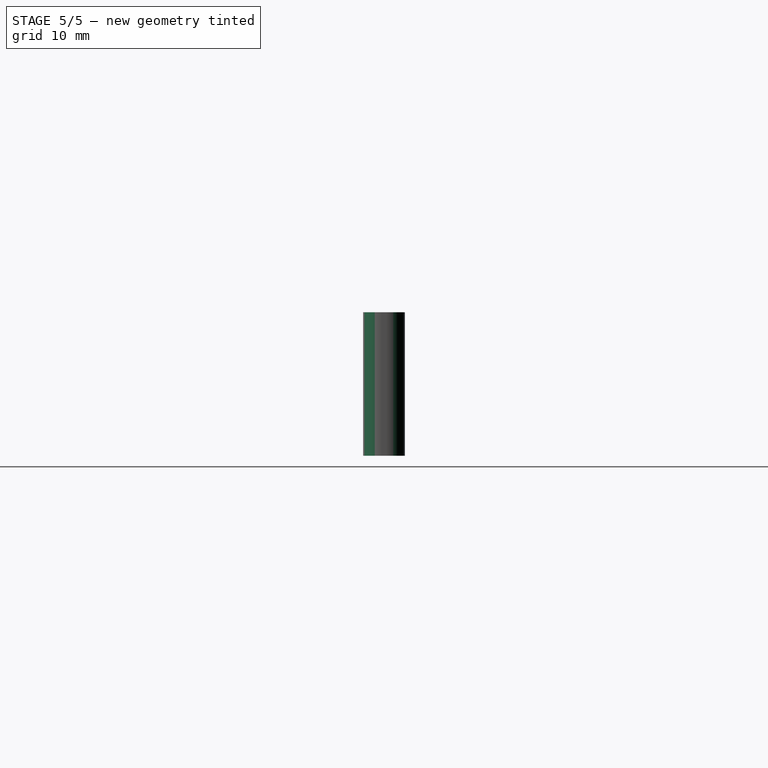
[diagram: stage 5 of 5 — right view after this stage's code; geometry added in this stage tinted green]
FEATURE [PartDesign::Pocket] Pocket005
  BaseFeature = -> Pocket004
  Length = 13.75
  Length2 = 100
  Profile = -> Sketch014
  Type = 0
FEATURE [PartDesign::Pocket] Pocket006
  BaseFeature = -> Pocket005
  Length = 13.75
  Length2 = 100
  Profile = -> Sketch015
  Type = 0
FEATURE [PartDesign::Pocket] Pocket007
  BaseFeature = -> Pocket006
  Length = 13.75
  Length2 = 100
  Profile = -> Sketch016
  Type = 0
FEATURE [PartDesign::Fillet] Fillet
  Base = -> Pocket007 [Edge111,Edge25,Edge115,Edge26,Edge31,Edge122,Edge124,Edge32,Edge131,Edge37,Edge133,Edge38,Edge140,Edge43,Edge142,Edge44,Edge149,Edge151,Edge49,Edge50,Edge158,Edge55,Edge56,Edge160,Edge167,Edge169,Edge61,Edge62,Edge176,Edge67,Edge68,Edge113]
  BaseFeature = -> Pocket007
  Radius = 1.8
  SupportTransform = false
FEATURE [PartDesign::Body] Body
  Group = -> [Sketch,Sketch001,Sketch002,Sketch003,Sketch004,Sketch005,Sketch006,Sketch007,Sketch008,Pad,Pad001,Pad002,Pad003,Pad004,Pad005,Pad006,Pad007,Pad008,Sketch009,Sketch010,Sketch011,Sketch012,Sketch013,Sketch014,Sketch015,Sketch016,Pocket,Pocket001,Pocket002,Pocket003,Pocket004,Pocket005,Pocket006,Pocket007,Fillet]
  Origin = -> Origin
  Tip = -> Fillet
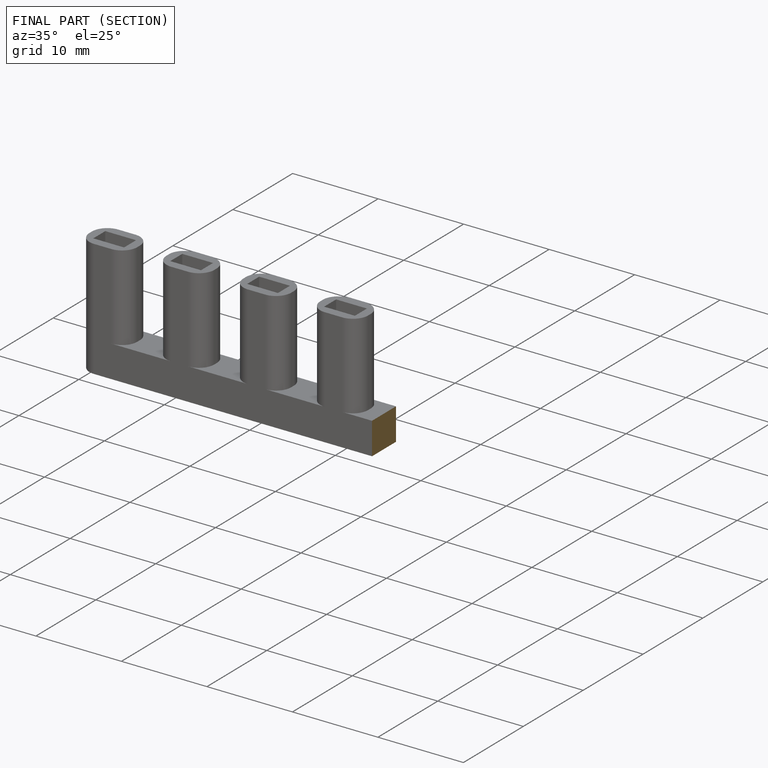
[diagram: finished part — half-section view (interior)]
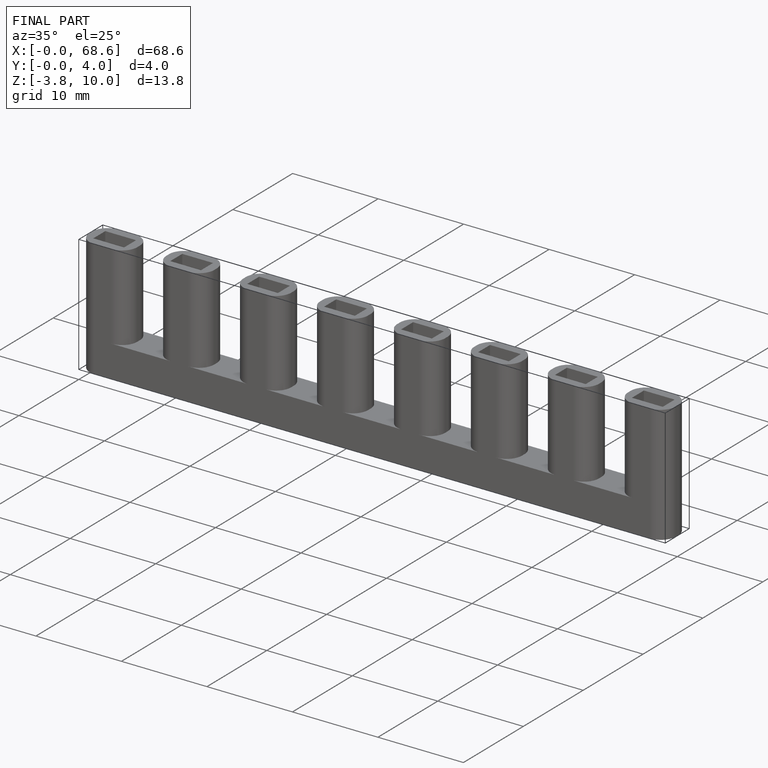
[diagram: finished part — iso view with bounding-box wireframe]
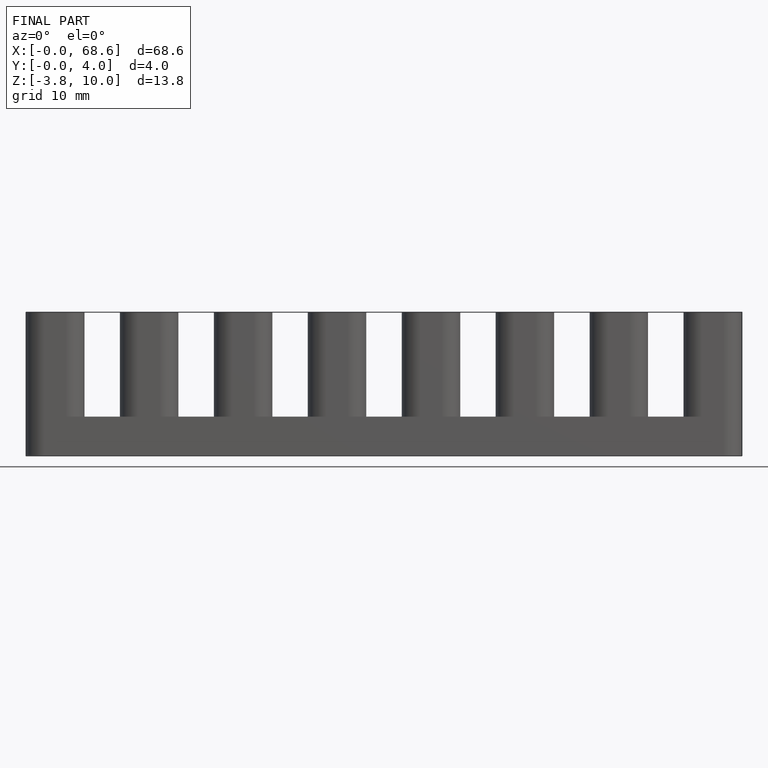
[diagram: finished part — front view with bounding-box wireframe]
